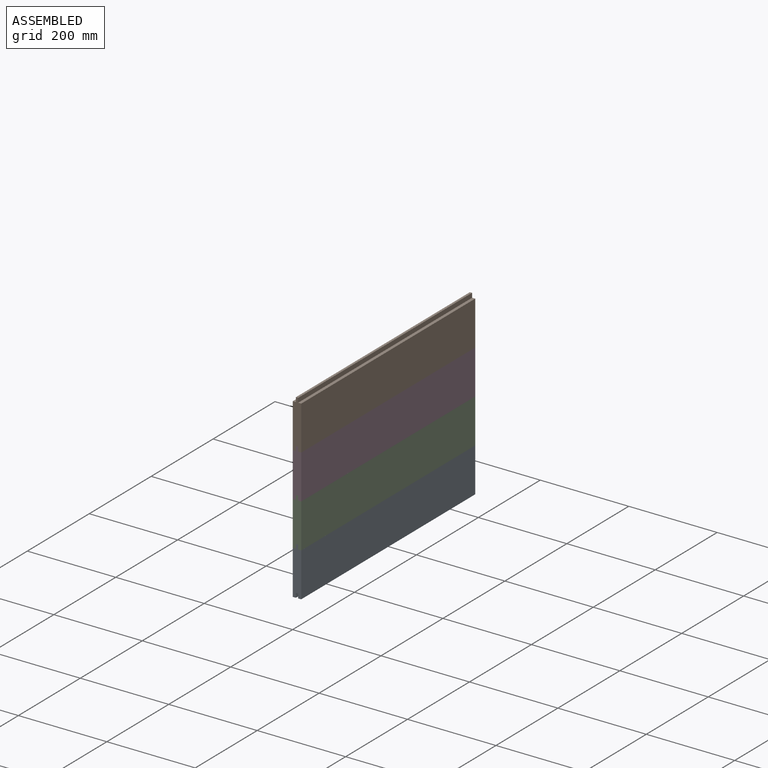
[diagram: assembled view]
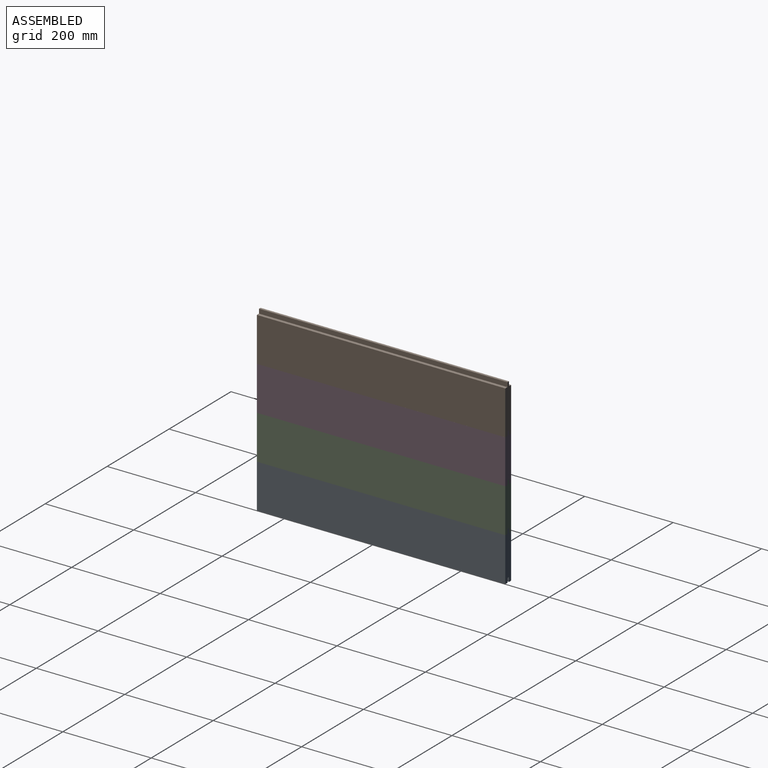
[diagram: assembled view, second angle]
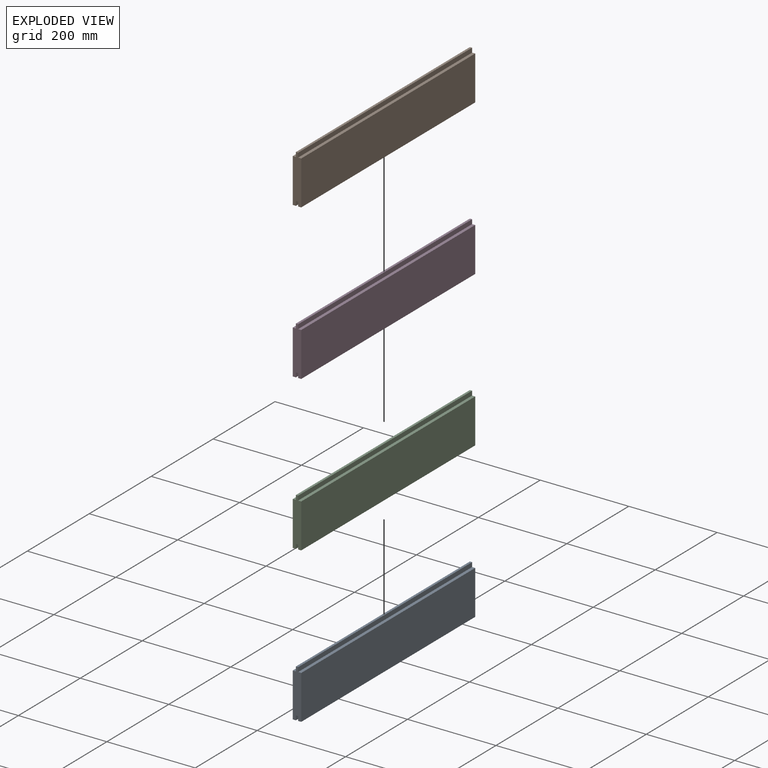
[diagram: exploded view]
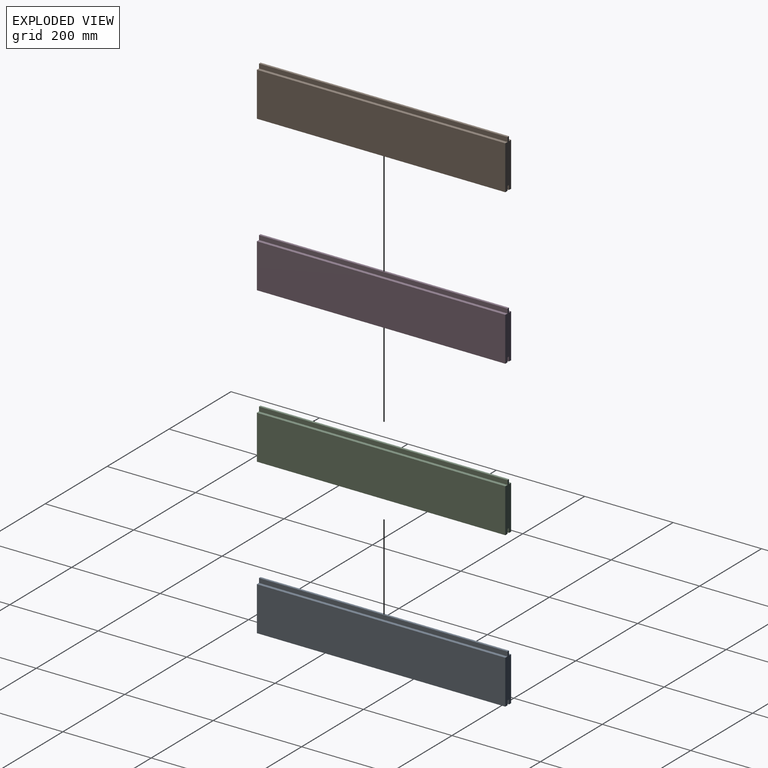
[diagram: exploded view, second angle]
ASSEMBLY  parts=4 mates=3
PART A: 14 faces, bbox 19x562x110 mm
  f0: plane 562x100mm, normal (-1,0,0), area 56200mm2, adj f1,f11,f12,f13
  f1: plane 562x7mm, normal (0,0,-1), area 3934mm2, adj f0,f2,f12,f13
  f2: plane 562x10mm, normal (1,0,0), area 5620mm2, adj f1,f3,f12,f13
  f3: plane 562x5mm, normal (0,0,-1), area 2810mm2, adj f2,f4,f12,f13
  f4: plane 562x10mm, normal (-1,0,0), area 5620mm2, adj f3,f5,f12,f13
  f5: plane 562x7mm, normal (0,0,-1), area 3934mm2, adj f4,f6,f12,f13
  f6: plane 562x100mm, normal (1,0,0), area 56200mm2, adj f5,f7,f12,f13
  f7: plane 562x7mm, normal (0,0,1), area 3934mm2, adj f6,f8,f12,f13
  f8: plane 562x10mm, normal (1,0,0), area 5620mm2, adj f7,f9,f12,f13
  f9: plane 562x5mm, normal (0,0,1), area 2810mm2, adj f8,f10,f12,f13
  f10: plane 562x10mm, normal (-1,0,0), area 5620mm2, adj f9,f11,f12,f13
  f11: plane 562x7mm, normal (0,0,1), area 3934mm2, adj f0,f10,f12,f13
  f12: plane 110x19mm, normal (0,1,0), area 1900mm2, adj f0,f1,f2,f3,f4,f5,f6,f7
  f13: plane 110x19mm, normal (0,-1,0), area 1900mm2, adj f0,f1,f2,f3,f4,f5,f6,f7
PART B: same geometry as A
PART C: same geometry as A
PART D: same geometry as A
PLACE A t=(239.05,-140.63,390.17)mm
PLACE B t=(239.05,-140.63,690.17)mm
PLACE C t=(239.05,-140.63,490.17)mm
PLACE D t=(239.05,-140.63,590.17)mm
MATE fastened C.f9 <-> D.f3  axis (0,0,1) through (248.55,140.37,600.17)mm
MATE fastened A.f9 <-> C.f3  axis (0,0,1) through (248.55,140.37,500.17)mm
MATE fastened D.f9 <-> B.f3  axis (0,0,1) through (248.55,140.37,700.17)mm
